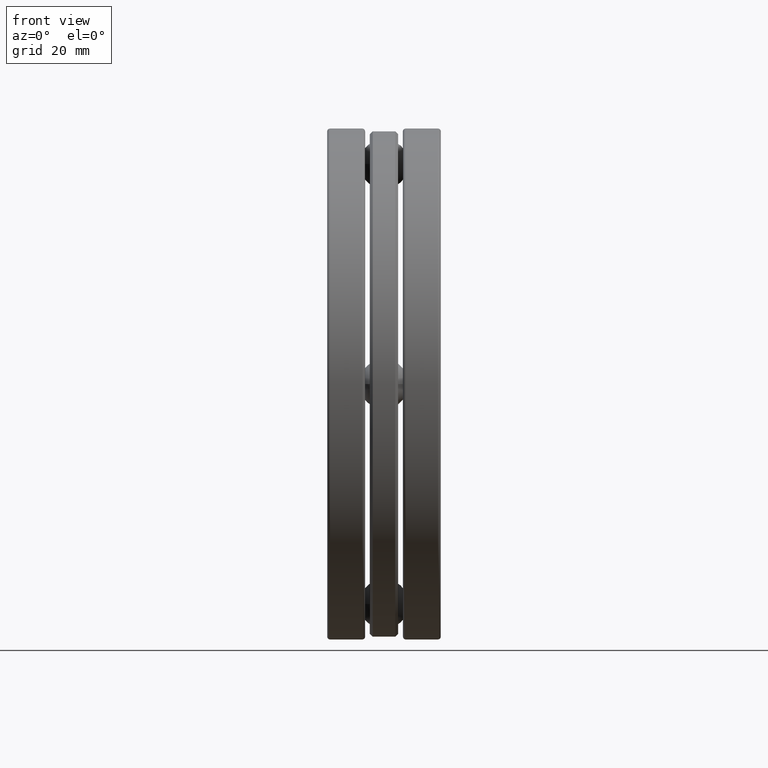
[diagram: clean part render]
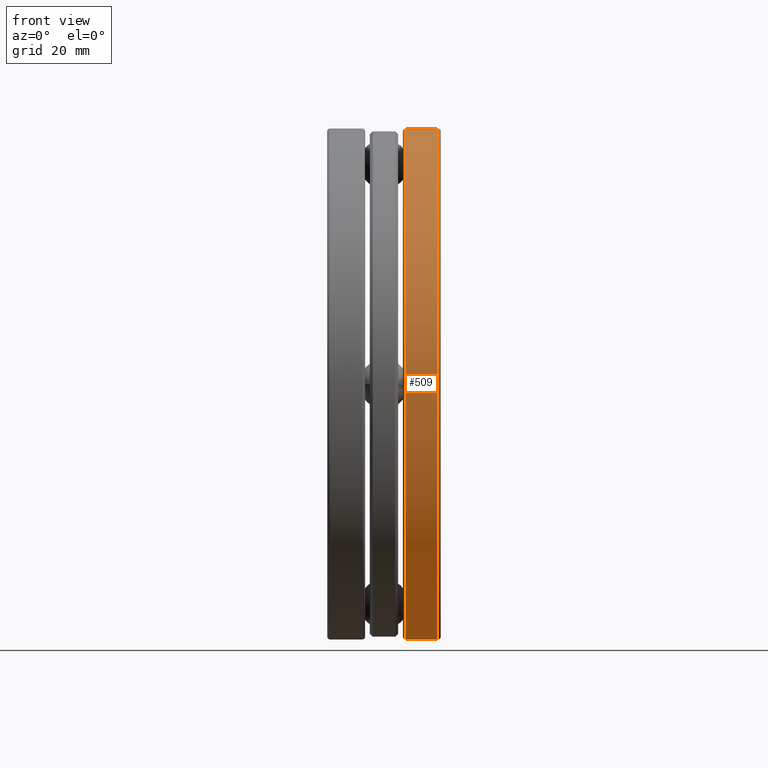
[diagram: same view with one face highlighted and labeled with its STEP entity id]
A machine part, front view. The second image highlights one B-rep face of the part: STEP entity #509.
In plain terms, the highlighted cylindrical surface (partial cylindrical patch) has radius 44.9961 mm, axis along (-1, -0, -0).
Its self-contained STEP definition (entity closure, byte-faithful):
#92 = VECTOR ( 'NONE', #111, 39.37007874015748143 ) ;
#94 = CIRCLE ( 'NONE', #1604, 1.771499999999999631 ) ;
#99 = ORIENTED_EDGE ( 'NONE', *, *, #828, .F. ) ;
#111 = DIRECTION ( 'NONE',  ( -1.000000000000000000, -0.0000000000000000000, -0.0000000000000000000 ) ) ;
#150 = VERTEX_POINT ( 'NONE', #1613 ) ;
#154 = DIRECTION ( 'NONE',  ( -1.000000000000000000, -0.0000000000000000000, -0.0000000000000000000 ) ) ;
#328 = CYLINDRICAL_SURFACE ( 'NONE', #1700, 1.771499999999999631 ) ;
#428 = ORIENTED_EDGE ( 'NONE', *, *, #1066, .T. ) ;
#481 = EDGE_CURVE ( 'NONE', #150, #1442, #94, .T. ) ;
#498 = VERTEX_POINT ( 'NONE', #1378 ) ;
#509 = ADVANCED_FACE ( 'NONE', ( #1210 ), #328, .T. ) ;
#681 = DIRECTION ( 'NONE',  ( 0.0000000000000000000, 0.0000000000000000000, 1.000000000000000000 ) ) ;
#828 = EDGE_CURVE ( 'NONE', #924, #150, #1279, .T. ) ;
#845 = DIRECTION ( 'NONE',  ( -1.000000000000000000, -0.0000000000000000000, -0.0000000000000000000 ) ) ;
#924 = VERTEX_POINT ( 'NONE', #1375 ) ;
#964 = DIRECTION ( 'NONE',  ( 0.0000000000000000000, 0.0000000000000000000, 1.000000000000000000 ) ) ;
#970 = CARTESIAN_POINT ( 'NONE',  ( 0.3735000000000003317, 0.0000000000000000000, 0.0000000000000000000 ) ) ;
#978 = DIRECTION ( 'NONE',  ( 0.0000000000000000000, 0.0000000000000000000, 1.000000000000000000 ) ) ;
#982 = ORIENTED_EDGE ( 'NONE', *, *, #481, .F. ) ;
#996 = CARTESIAN_POINT ( 'NONE',  ( 0.0000000000000000000, 0.0000000000000000000, 1.771499999999999631 ) ) ;
#1026 = AXIS2_PLACEMENT_3D ( 'NONE', #970, #845, #978 ) ;
#1041 = VECTOR ( 'NONE', #1270, 39.37007874015748143 ) ;
#1066 = EDGE_CURVE ( 'NONE', #498, #1442, #1568, .T. ) ;
#1156 = CIRCLE ( 'NONE', #1026, 1.771499999999999631 ) ;
#1208 = CARTESIAN_POINT ( 'NONE',  ( 0.1511692900000001227, 0.0000000000000000000, 1.771499999999999631 ) ) ;
#1210 = FACE_OUTER_BOUND ( 'NONE', #1461, .T. ) ;
#1236 = CARTESIAN_POINT ( 'NONE',  ( 0.1511692900000001227, 0.0000000000000000000, 0.0000000000000000000 ) ) ;
#1270 = DIRECTION ( 'NONE',  ( -1.000000000000000000, -0.0000000000000000000, -0.0000000000000000000 ) ) ;
#1279 = LINE ( 'NONE', #1487, #92 ) ;
#1359 = ORIENTED_EDGE ( 'NONE', *, *, #1512, .T. ) ;
#1375 = CARTESIAN_POINT ( 'NONE',  ( 0.3735000000000003317, 2.169461804689536025E-16, -1.771499999999999631 ) ) ;
#1378 = CARTESIAN_POINT ( 'NONE',  ( 0.3735000000000003317, 0.0000000000000000000, 1.771499999999999631 ) ) ;
#1384 = DIRECTION ( 'NONE',  ( -1.000000000000000000, -0.0000000000000000000, -0.0000000000000000000 ) ) ;
#1442 = VERTEX_POINT ( 'NONE', #1208 ) ;
#1461 = EDGE_LOOP ( 'NONE', ( #99, #1359, #428, #982 ) ) ;
#1487 = CARTESIAN_POINT ( 'NONE',  ( 0.0000000000000000000, 2.169461804689536025E-16, -1.771499999999999631 ) ) ;
#1512 = EDGE_CURVE ( 'NONE', #924, #498, #1156, .T. ) ;
#1568 = LINE ( 'NONE', #996, #1041 ) ;
#1604 = AXIS2_PLACEMENT_3D ( 'NONE', #1236, #1384, #964 ) ;
#1613 = CARTESIAN_POINT ( 'NONE',  ( 0.1511692900000001227, 2.169461804689536025E-16, -1.771499999999999631 ) ) ;
#1672 = CARTESIAN_POINT ( 'NONE',  ( 0.0000000000000000000, 0.0000000000000000000, 0.0000000000000000000 ) ) ;
#1700 = AXIS2_PLACEMENT_3D ( 'NONE', #1672, #154, #681 ) ;